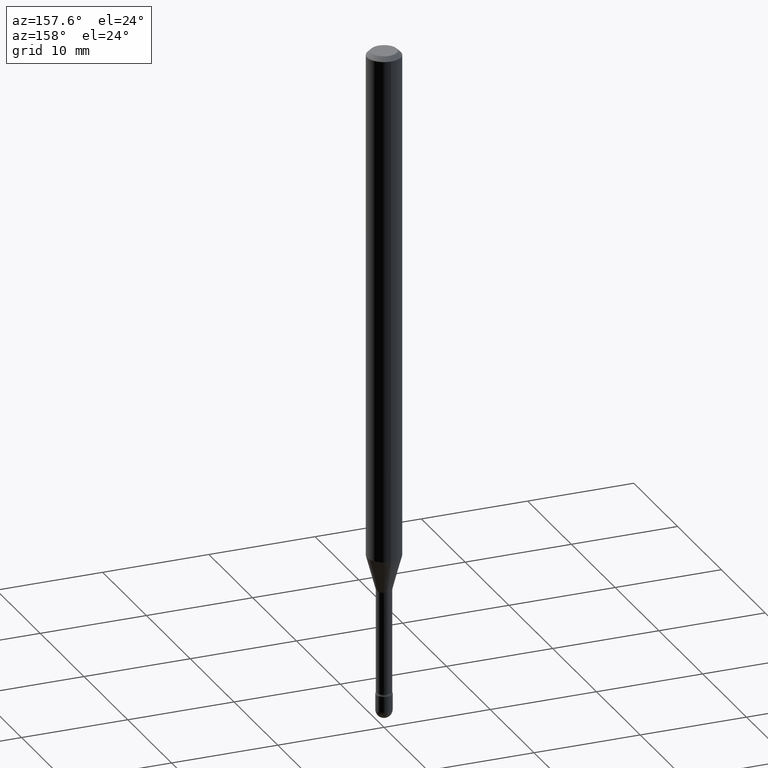
[diagram: clean part render]
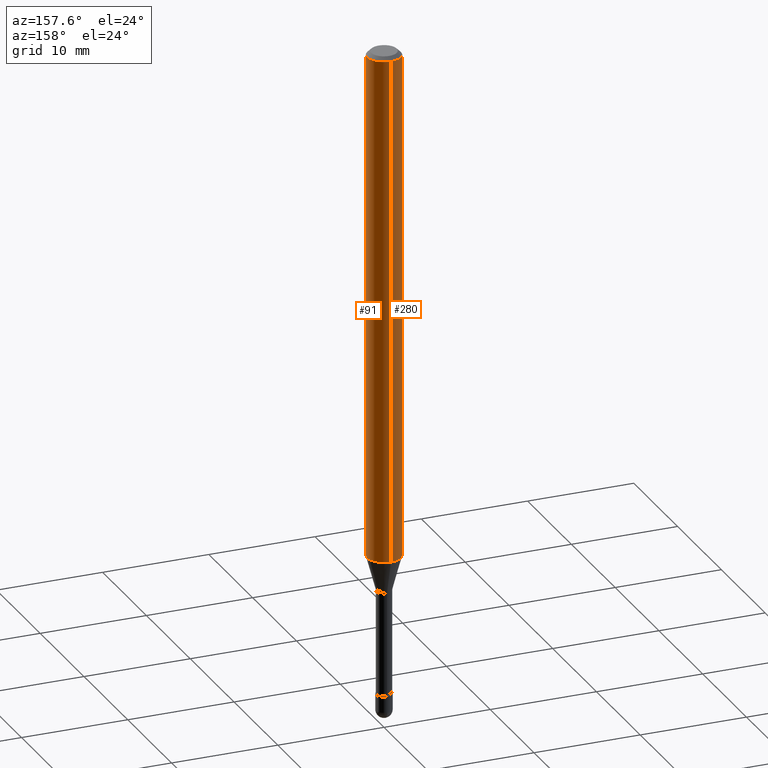
[diagram: same view with one multi-face feature highlighted, each face labeled with its STEP entity id]
A machine part, auxiliary view. The highlighted faces form ONE feature: a constant-radius fillet chain: 2 tangent blend faces with common blend radius 1.5875 mm. The faces share edges in the B-rep.
Their STEP definitions:
[1] entity #91 (Cylinder):
#15 = DIRECTION ( 'NONE',  ( -2.445510975464045356E-29, 3.491420950035621871E-15, 1.000000000000000000 ) ) ;
#16 = EDGE_LOOP ( 'NONE', ( #84, #549, #248, #277 ) ) ;
#27 = DIRECTION ( 'NONE',  ( -2.445510975464045356E-29, 3.491420950035621871E-15, 1.000000000000000000 ) ) ;
#38 = DIRECTION ( 'NONE',  ( -6.982962677686265922E-15, -1.000000000000000000, 3.483106191921935554E-15 ) ) ;
#56 = LINE ( 'NONE', #413, #446 ) ;
#84 = ORIENTED_EDGE ( 'NONE', *, *, #427, .T. ) ;
#91 = ADVANCED_FACE ( 'NONE', ( #476 ), #467, .T. ) ;
#130 = AXIS2_PLACEMENT_3D ( 'NONE', #558, #210, #38 ) ;
#131 = AXIS2_PLACEMENT_3D ( 'NONE', #281, #145, #191 ) ;
#134 = EDGE_CURVE ( 'NONE', #270, #238, #369, .T. ) ;
#145 = DIRECTION ( 'NONE',  ( -2.445510975464045356E-29, 3.491420950035621871E-15, 1.000000000000000000 ) ) ;
#191 = DIRECTION ( 'NONE',  ( -6.982962677686265922E-15, -1.000000000000000000, 4.370956789862821150E-15 ) ) ;
#208 = DIRECTION ( 'NONE',  ( -6.982962677686265922E-15, -1.000000000000000000, 3.491420950035622660E-15 ) ) ;
#210 = DIRECTION ( 'NONE',  ( -2.445510975464045356E-29, 3.491420950035621871E-15, 1.000000000000000000 ) ) ;
#231 = LINE ( 'NONE', #544, #370 ) ;
#233 = CARTESIAN_POINT ( 'NONE',  ( -4.364351673553455210E-16, -0.06250000000000663358, -1.891990657300387513 ) ) ;
#238 = VERTEX_POINT ( 'NONE', #395 ) ;
#248 = ORIENTED_EDGE ( 'NONE', *, *, #134, .F. ) ;
#263 = CARTESIAN_POINT ( 'NONE',  ( -4.364351673553912750E-16, -0.06250000000000005551, -0.01499999999999986587 ) ) ;
#270 = VERTEX_POINT ( 'NONE', #263 ) ;
#277 = ORIENTED_EDGE ( 'NONE', *, *, #386, .F. ) ;
#281 = CARTESIAN_POINT ( 'NONE',  ( 4.626883917903531477E-29, -6.605735818170240970E-15, -1.891990657300387735 ) ) ;
#306 = CIRCLE ( 'NONE', #131, 0.06250000000000000000 ) ;
#324 = VERTEX_POINT ( 'NONE', #233 ) ;
#349 = EDGE_CURVE ( 'NONE', #541, #238, #231, .T. ) ;
#369 = CIRCLE ( 'NONE', #130, 0.06250000000000000000 ) ;
#370 = VECTOR ( 'NONE', #27, 39.37007874015748143 ) ;
#374 = CARTESIAN_POINT ( 'NONE',  ( -1.169113584055446105E-44, 1.669184350826100908E-30, 4.780733988912460139E-16 ) ) ;
#386 = EDGE_CURVE ( 'NONE', #324, #270, #56, .T. ) ;
#395 = CARTESIAN_POINT ( 'NONE',  ( 4.440892098501091590E-16, 0.06249999999999995143, -0.01500000000000030129 ) ) ;
#413 = CARTESIAN_POINT ( 'NONE',  ( -4.364351673553916201E-16, -0.06250000000000000000, 6.962872082684724302E-16 ) ) ;
#427 = EDGE_CURVE ( 'NONE', #324, #541, #306, .T. ) ;
#446 = VECTOR ( 'NONE', #15, 39.37007874015748143 ) ;
#467 = CYLINDRICAL_SURFACE ( 'NONE', #521, 0.06250000000000000000 ) ;
#474 = CARTESIAN_POINT ( 'NONE',  ( 4.440892098501085673E-16, 0.06249999999999335948, -1.891990657300388179 ) ) ;
#476 = FACE_OUTER_BOUND ( 'NONE', #16, .T. ) ;
#478 = DIRECTION ( 'NONE',  ( -2.445510975464045356E-29, 3.491420950035621871E-15, 1.000000000000000000 ) ) ;
#521 = AXIS2_PLACEMENT_3D ( 'NONE', #374, #478, #208 ) ;
#541 = VERTEX_POINT ( 'NONE', #474 ) ;
#544 = CARTESIAN_POINT ( 'NONE',  ( 4.440892098500625669E-16, 0.06250000000000000000, 2.598595895140196963E-16 ) ) ;
#549 = ORIENTED_EDGE ( 'NONE', *, *, #349, .T. ) ;
#558 = CARTESIAN_POINT ( 'NONE',  ( 3.668266463196088177E-31, -5.237131425053461575E-17, -0.01500000000000008271 ) ) ;
[2] entity #280 (Cylinder):
#2 = DIRECTION ( 'NONE',  ( -2.445510975464045356E-29, 3.491420950035621871E-15, 1.000000000000000000 ) ) ;
#15 = DIRECTION ( 'NONE',  ( -2.445510975464045356E-29, 3.491420950035621871E-15, 1.000000000000000000 ) ) ;
#27 = DIRECTION ( 'NONE',  ( -2.445510975464045356E-29, 3.491420950035621871E-15, 1.000000000000000000 ) ) ;
#48 = DIRECTION ( 'NONE',  ( -2.445510975464045356E-29, 3.491420950035621871E-15, 1.000000000000000000 ) ) ;
#56 = LINE ( 'NONE', #413, #446 ) ;
#88 = CARTESIAN_POINT ( 'NONE',  ( 4.626883917903531477E-29, -6.605735818170240970E-15, -1.891990657300387735 ) ) ;
#92 = FACE_OUTER_BOUND ( 'NONE', #457, .T. ) ;
#98 = DIRECTION ( 'NONE',  ( -2.445510975464045356E-29, 3.491420950035621871E-15, 1.000000000000000000 ) ) ;
#102 = AXIS2_PLACEMENT_3D ( 'NONE', #88, #48, #224 ) ;
#224 = DIRECTION ( 'NONE',  ( -6.982962677686265922E-15, -1.000000000000000000, 4.370956789862821150E-15 ) ) ;
#229 = CARTESIAN_POINT ( 'NONE',  ( 3.668266463196088177E-31, -5.237131425053461575E-17, -0.01500000000000008271 ) ) ;
#231 = LINE ( 'NONE', #544, #370 ) ;
#232 = ORIENTED_EDGE ( 'NONE', *, *, #386, .T. ) ;
#233 = CARTESIAN_POINT ( 'NONE',  ( -4.364351673553455210E-16, -0.06250000000000663358, -1.891990657300387513 ) ) ;
#236 = DIRECTION ( 'NONE',  ( -6.982962677686265922E-15, -1.000000000000000000, 3.483106191921935554E-15 ) ) ;
#238 = VERTEX_POINT ( 'NONE', #395 ) ;
#241 = CIRCLE ( 'NONE', #102, 0.06250000000000000000 ) ;
#263 = CARTESIAN_POINT ( 'NONE',  ( -4.364351673553912750E-16, -0.06250000000000005551, -0.01499999999999986587 ) ) ;
#270 = VERTEX_POINT ( 'NONE', #263 ) ;
#279 = EDGE_CURVE ( 'NONE', #541, #324, #241, .T. ) ;
#280 = ADVANCED_FACE ( 'NONE', ( #92 ), #402, .T. ) ;
#285 = ORIENTED_EDGE ( 'NONE', *, *, #279, .T. ) ;
#324 = VERTEX_POINT ( 'NONE', #233 ) ;
#349 = EDGE_CURVE ( 'NONE', #541, #238, #231, .T. ) ;
#370 = VECTOR ( 'NONE', #27, 39.37007874015748143 ) ;
#386 = EDGE_CURVE ( 'NONE', #324, #270, #56, .T. ) ;
#395 = CARTESIAN_POINT ( 'NONE',  ( 4.440892098501091590E-16, 0.06249999999999995143, -0.01500000000000030129 ) ) ;
#400 = DIRECTION ( 'NONE',  ( -6.982962677686265922E-15, -1.000000000000000000, 3.491420950035622660E-15 ) ) ;
#402 = CYLINDRICAL_SURFACE ( 'NONE', #546, 0.06250000000000000000 ) ;
#413 = CARTESIAN_POINT ( 'NONE',  ( -4.364351673553916201E-16, -0.06250000000000000000, 6.962872082684724302E-16 ) ) ;
#418 = ORIENTED_EDGE ( 'NONE', *, *, #453, .F. ) ;
#432 = AXIS2_PLACEMENT_3D ( 'NONE', #229, #98, #236 ) ;
#446 = VECTOR ( 'NONE', #15, 39.37007874015748143 ) ;
#449 = CARTESIAN_POINT ( 'NONE',  ( -1.169113584055446105E-44, 1.669184350826100908E-30, 4.780733988912460139E-16 ) ) ;
#453 = EDGE_CURVE ( 'NONE', #238, #270, #456, .T. ) ;
#456 = CIRCLE ( 'NONE', #432, 0.06250000000000000000 ) ;
#457 = EDGE_LOOP ( 'NONE', ( #498, #285, #232, #418 ) ) ;
#474 = CARTESIAN_POINT ( 'NONE',  ( 4.440892098501085673E-16, 0.06249999999999335948, -1.891990657300388179 ) ) ;
#498 = ORIENTED_EDGE ( 'NONE', *, *, #349, .F. ) ;
#541 = VERTEX_POINT ( 'NONE', #474 ) ;
#544 = CARTESIAN_POINT ( 'NONE',  ( 4.440892098500625669E-16, 0.06250000000000000000, 2.598595895140196963E-16 ) ) ;
#546 = AXIS2_PLACEMENT_3D ( 'NONE', #449, #2, #400 ) ;